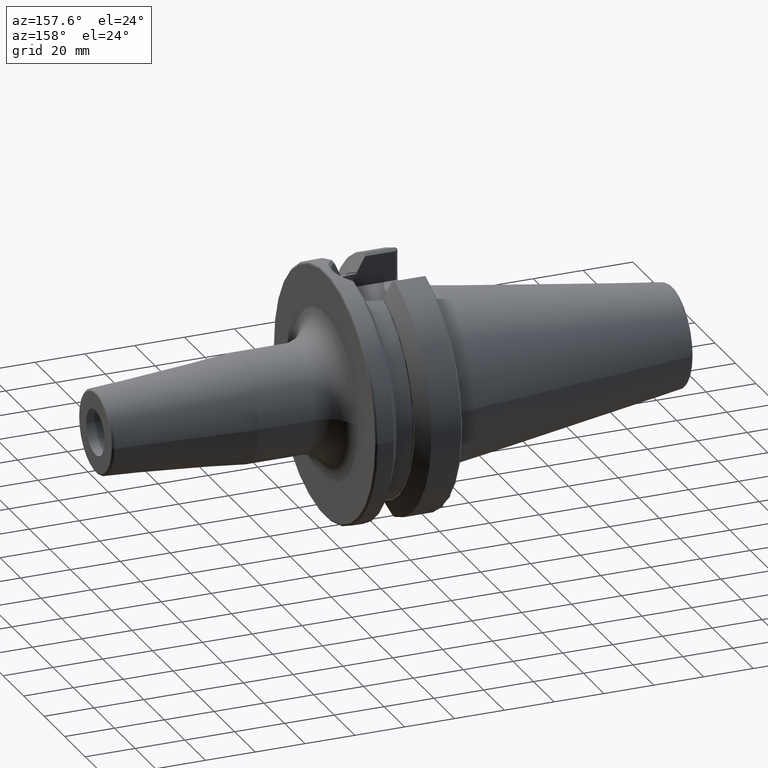
[diagram: clean part render]
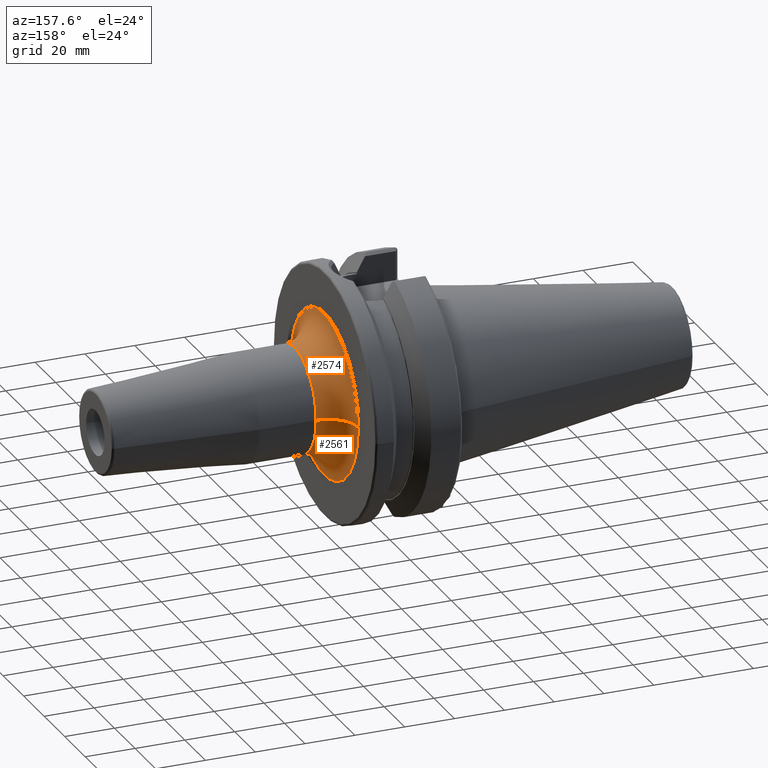
[diagram: same view with one multi-face feature highlighted, each face labeled with its STEP entity id]
A machine part, auxiliary view. The highlighted faces form ONE feature: a constant-radius fillet chain: 2 tangent blend faces with common blend radius 12 mm. The faces share edges in the B-rep.
Their STEP definitions:
[1] entity #2561 (Torus):
#834=CARTESIAN_POINT('',(3.8E1,0.E0,0.E0));
#835=DIRECTION('',(1.E0,0.E0,0.E0));
#836=DIRECTION('',(0.E0,-1.E0,0.E0));
#837=AXIS2_PLACEMENT_3D('',#834,#835,#836);
#844=CARTESIAN_POINT('',(5.E1,-3.3E1,2.309652469279E-12));
#845=DIRECTION('',(0.E0,-6.999002072350E-14,-1.E0));
#846=DIRECTION('',(-1.E0,0.E0,0.E0));
#847=AXIS2_PLACEMENT_3D('',#844,#845,#846);
#849=CARTESIAN_POINT('',(5.E1,3.3E1,-2.313427227563E-12));
#850=DIRECTION('',(0.E0,7.010364511117E-14,1.E0));
#851=DIRECTION('',(-1.E0,0.E0,0.E0));
#852=AXIS2_PLACEMENT_3D('',#849,#850,#851);
#864=CARTESIAN_POINT('',(5.E1,0.E0,0.E0));
#865=DIRECTION('',(1.E0,0.E0,0.E0));
#866=DIRECTION('',(0.E0,-1.E0,0.E0));
#867=AXIS2_PLACEMENT_3D('',#864,#865,#866);
#1403=CARTESIAN_POINT('',(3.8E1,-3.3E1,0.E0));
#1404=CARTESIAN_POINT('',(3.8E1,3.3E1,0.E0));
#1405=VERTEX_POINT('',#1403);
#1406=VERTEX_POINT('',#1404);
#1407=CARTESIAN_POINT('',(5.E1,-2.1E1,0.E0));
#1408=CARTESIAN_POINT('',(5.E1,2.1E1,0.E0));
#1409=VERTEX_POINT('',#1407);
#1410=VERTEX_POINT('',#1408);
#2547=CARTESIAN_POINT('',(5.E1,0.E0,0.E0));
#2548=DIRECTION('',(1.E0,0.E0,0.E0));
#2549=DIRECTION('',(0.E0,-9.999731921857E-1,7.322220282676E-3));
#2550=AXIS2_PLACEMENT_3D('',#2547,#2548,#2549);
#2551=TOROIDAL_SURFACE('',#2550,3.3E1,1.2E1);
#2552=ORIENTED_EDGE('',*,*,#2540,.F.);
#2554=ORIENTED_EDGE('',*,*,#2553,.T.);
#2556=ORIENTED_EDGE('',*,*,#2555,.T.);
#2558=ORIENTED_EDGE('',*,*,#2557,.F.);
#2559=EDGE_LOOP('',(#2552,#2554,#2556,#2558));
#2560=FACE_OUTER_BOUND('',#2559,.F.);
#2561=ADVANCED_FACE('',(#2560),#2551,.F.);
#838=CIRCLE('',#837,3.3E1);
#848=CIRCLE('',#847,1.2E1);
#853=CIRCLE('',#852,1.2E1);
#868=CIRCLE('',#867,2.1E1);
#2540=EDGE_CURVE('',#1405,#1406,#838,.T.);
#2553=EDGE_CURVE('',#1405,#1409,#848,.T.);
#2555=EDGE_CURVE('',#1409,#1410,#868,.T.);
#2557=EDGE_CURVE('',#1406,#1410,#853,.T.);
[2] entity #2574 (Torus):
#839=CARTESIAN_POINT('',(3.8E1,0.E0,0.E0));
#840=DIRECTION('',(1.E0,0.E0,0.E0));
#841=DIRECTION('',(0.E0,1.E0,0.E0));
#842=AXIS2_PLACEMENT_3D('',#839,#840,#841);
#844=CARTESIAN_POINT('',(5.E1,-3.3E1,2.309652469279E-12));
#845=DIRECTION('',(0.E0,-6.999002072350E-14,-1.E0));
#846=DIRECTION('',(-1.E0,0.E0,0.E0));
#847=AXIS2_PLACEMENT_3D('',#844,#845,#846);
#849=CARTESIAN_POINT('',(5.E1,3.3E1,-2.313427227563E-12));
#850=DIRECTION('',(0.E0,7.010364511117E-14,1.E0));
#851=DIRECTION('',(-1.E0,0.E0,0.E0));
#852=AXIS2_PLACEMENT_3D('',#849,#850,#851);
#854=CARTESIAN_POINT('',(5.E1,0.E0,0.E0));
#855=DIRECTION('',(1.E0,0.E0,0.E0));
#856=DIRECTION('',(0.E0,1.E0,0.E0));
#857=AXIS2_PLACEMENT_3D('',#854,#855,#856);
#1403=CARTESIAN_POINT('',(3.8E1,-3.3E1,0.E0));
#1404=CARTESIAN_POINT('',(3.8E1,3.3E1,0.E0));
#1405=VERTEX_POINT('',#1403);
#1406=VERTEX_POINT('',#1404);
#1407=CARTESIAN_POINT('',(5.E1,-2.1E1,0.E0));
#1408=CARTESIAN_POINT('',(5.E1,2.1E1,0.E0));
#1409=VERTEX_POINT('',#1407);
#1410=VERTEX_POINT('',#1408);
#2562=CARTESIAN_POINT('',(5.E1,0.E0,0.E0));
#2563=DIRECTION('',(1.E0,0.E0,0.E0));
#2564=DIRECTION('',(0.E0,9.999731921857E-1,-7.322220282677E-3));
#2565=AXIS2_PLACEMENT_3D('',#2562,#2563,#2564);
#2566=TOROIDAL_SURFACE('',#2565,3.3E1,1.2E1);
#2567=ORIENTED_EDGE('',*,*,#2542,.F.);
#2568=ORIENTED_EDGE('',*,*,#2557,.T.);
#2570=ORIENTED_EDGE('',*,*,#2569,.T.);
#2571=ORIENTED_EDGE('',*,*,#2553,.F.);
#2572=EDGE_LOOP('',(#2567,#2568,#2570,#2571));
#2573=FACE_OUTER_BOUND('',#2572,.F.);
#2574=ADVANCED_FACE('',(#2573),#2566,.F.);
#843=CIRCLE('',#842,3.3E1);
#848=CIRCLE('',#847,1.2E1);
#853=CIRCLE('',#852,1.2E1);
#858=CIRCLE('',#857,2.1E1);
#2542=EDGE_CURVE('',#1406,#1405,#843,.T.);
#2553=EDGE_CURVE('',#1405,#1409,#848,.T.);
#2557=EDGE_CURVE('',#1406,#1410,#853,.T.);
#2569=EDGE_CURVE('',#1410,#1409,#858,.T.);